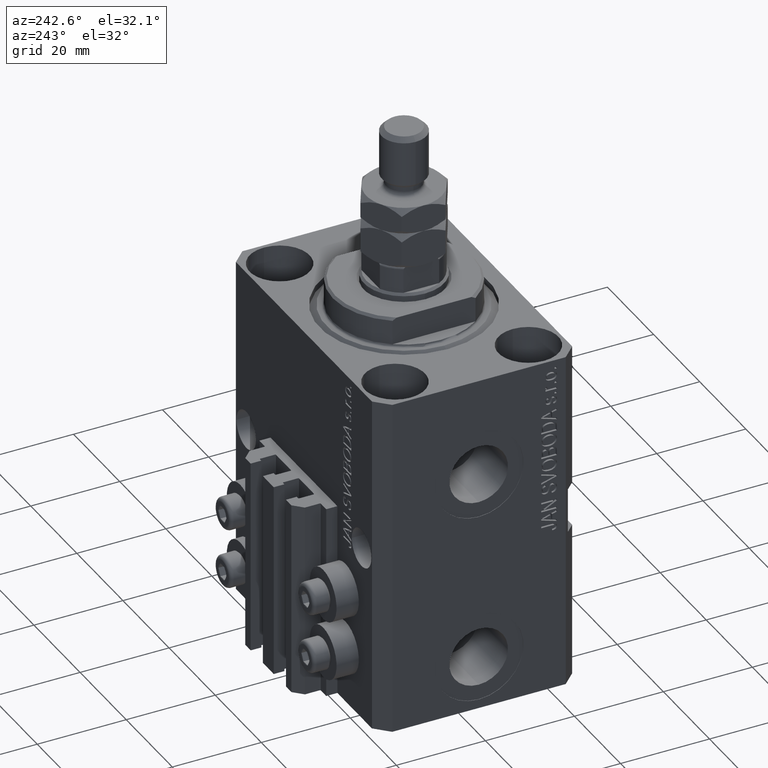
[diagram: clean part render]
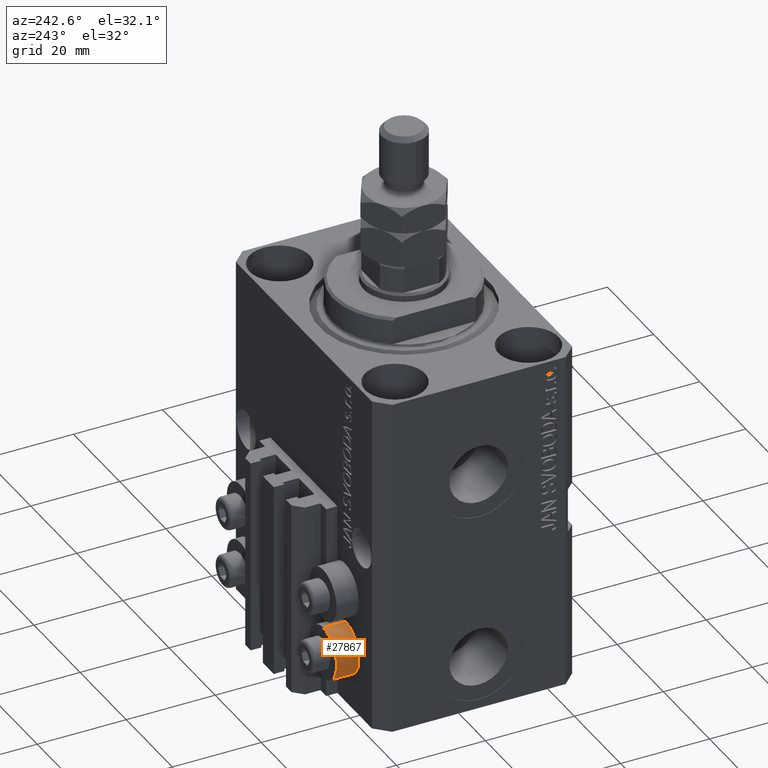
[diagram: same view with one face highlighted and labeled with its STEP entity id]
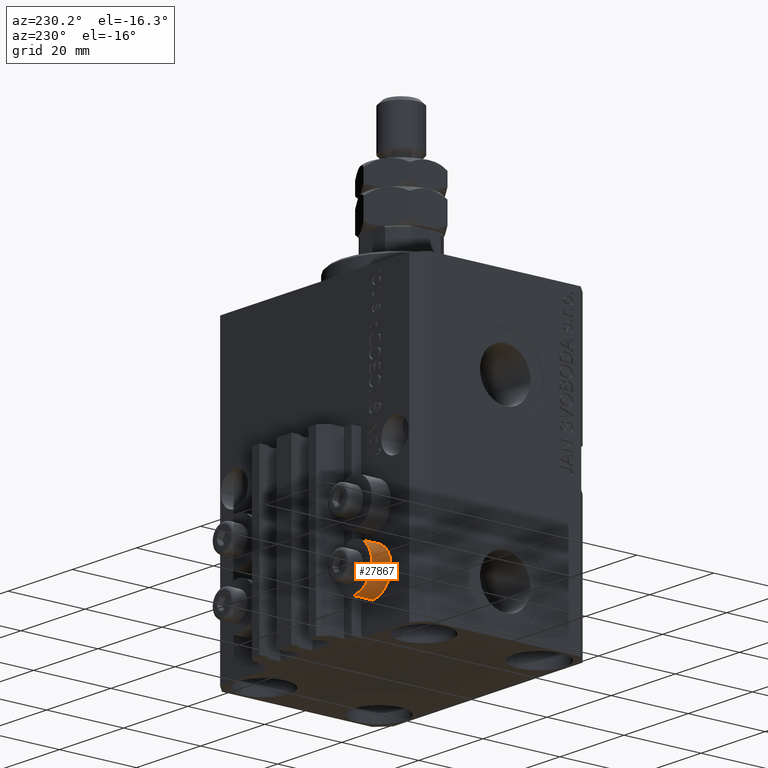
[diagram: same view with one face highlighted and labeled with its STEP entity id]
A machine part, auxiliary view. The second image highlights one B-rep face of the part: STEP entity #27867.
A second angle (auxiliary view) of the same face is appended — the face is thin or edge-on in the first view.
In plain terms, the highlighted cylindrical surface (edge-blend (fillet) strip) has radius 5.8 mm, axis along (0, 1, 0).
Its self-contained STEP definition (entity closure, byte-faithful):
#2619 = DIRECTION ( 'NONE',  ( 0.000000000000000000, 0.000000000000000000, -1.000000000000000000 ) ) ;
#4227 = ORIENTED_EDGE ( 'NONE', *, *, #13022, .T. ) ;
#4512 = AXIS2_PLACEMENT_3D ( 'NONE', #30856, #16571, #45635 ) ;
#6617 = VERTEX_POINT ( 'NONE', #19956 ) ;
#6631 = VERTEX_POINT ( 'NONE', #31040 ) ;
#7718 = LINE ( 'NONE', #7960, #8634 ) ;
#7960 = CARTESIAN_POINT ( 'NONE',  ( -18.00000000000000355, 27.49999999996051514, -58.20000000000000284 ) ) ;
#8634 = VECTOR ( 'NONE', #14632, 1000.000000000000000 ) ;
#8878 = CARTESIAN_POINT ( 'NONE',  ( -18.00000000000000355, 27.49999999996051514, -69.79999999999999716 ) ) ;
#9341 = VERTEX_POINT ( 'NONE', #10651 ) ;
#10651 = CARTESIAN_POINT ( 'NONE',  ( -18.00000000000000355, 27.49999999996051514, -58.20000000000000284 ) ) ;
#13022 = EDGE_CURVE ( 'NONE', #6631, #9341, #7718, .T. ) ;
#13160 = AXIS2_PLACEMENT_3D ( 'NONE', #24913, #47574, #24429 ) ;
#14257 = EDGE_LOOP ( 'NONE', ( #43171, #4227, #24815, #28235 ) ) ;
#14632 = DIRECTION ( 'NONE',  ( 0.000000000000000000, 1.000000000000000000, 0.000000000000000000 ) ) ;
#16571 = DIRECTION ( 'NONE',  ( -0.000000000000000000, -1.000000000000000000, -0.000000000000000000 ) ) ;
#19956 = CARTESIAN_POINT ( 'NONE',  ( -18.00000000000000355, 27.49999999996051514, -69.79999999999999716 ) ) ;
#19971 = EDGE_CURVE ( 'NONE', #9341, #6617, #35852, .T. ) ;
#24429 = DIRECTION ( 'NONE',  ( 0.000000000000000000, 0.000000000000000000, -1.000000000000000000 ) ) ;
#24731 = VERTEX_POINT ( 'NONE', #39834 ) ;
#24815 = ORIENTED_EDGE ( 'NONE', *, *, #19971, .T. ) ;
#24913 = CARTESIAN_POINT ( 'NONE',  ( -18.00000000000000355, 27.49999999996051514, -64.00000000000000000 ) ) ;
#25046 = DIRECTION ( 'NONE',  ( -0.000000000000000000, -1.000000000000000000, -0.000000000000000000 ) ) ;
#26185 = CARTESIAN_POINT ( 'NONE',  ( -18.00000000000000355, 27.49999999996051514, -64.00000000000000000 ) ) ;
#27766 = EDGE_CURVE ( 'NONE', #6631, #24731, #28116, .T. ) ;
#27867 = ADVANCED_FACE ( 'NONE', ( #47100 ), #32543, .T. ) ;
#28116 = CIRCLE ( 'NONE', #4512, 5.799999999999999822 ) ;
#28235 = ORIENTED_EDGE ( 'NONE', *, *, #42854, .F. ) ;
#30856 = CARTESIAN_POINT ( 'NONE',  ( -18.00000000000000355, 22.49999999999951328, -64.00000000000000000 ) ) ;
#31040 = CARTESIAN_POINT ( 'NONE',  ( -18.00000000000000355, 22.49999999999951328, -58.20000000000000284 ) ) ;
#31909 = AXIS2_PLACEMENT_3D ( 'NONE', #26185, #25046, #2619 ) ;
#32512 = LINE ( 'NONE', #8878, #43679 ) ;
#32543 = CYLINDRICAL_SURFACE ( 'NONE', #13160, 5.799999999999999822 ) ;
#35852 = CIRCLE ( 'NONE', #31909, 5.799999999999999822 ) ;
#38939 = DIRECTION ( 'NONE',  ( 0.000000000000000000, 1.000000000000000000, 0.000000000000000000 ) ) ;
#39834 = CARTESIAN_POINT ( 'NONE',  ( -18.00000000000000355, 22.49999999999951328, -69.79999999999999716 ) ) ;
#42854 = EDGE_CURVE ( 'NONE', #24731, #6617, #32512, .T. ) ;
#43171 = ORIENTED_EDGE ( 'NONE', *, *, #27766, .F. ) ;
#43679 = VECTOR ( 'NONE', #38939, 1000.000000000000000 ) ;
#45635 = DIRECTION ( 'NONE',  ( 0.000000000000000000, 0.000000000000000000, -1.000000000000000000 ) ) ;
#47100 = FACE_OUTER_BOUND ( 'NONE', #14257, .T. ) ;
#47574 = DIRECTION ( 'NONE',  ( 0.000000000000000000, 1.000000000000000000, 0.000000000000000000 ) ) ;